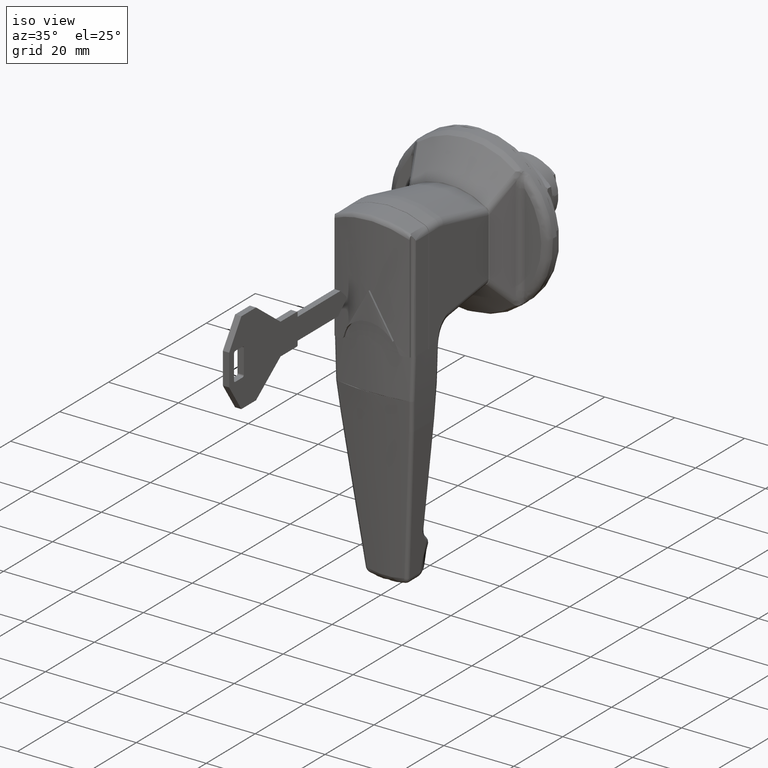
[diagram: clean part render]
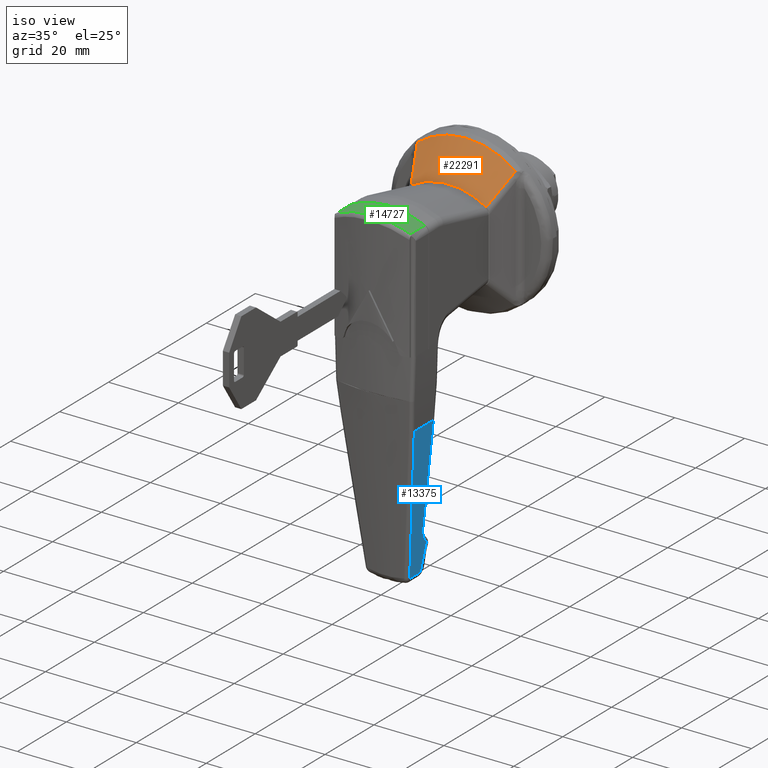
[diagram: same view with three faces highlighted in distinct colors, each labeled with its STEP entity id]
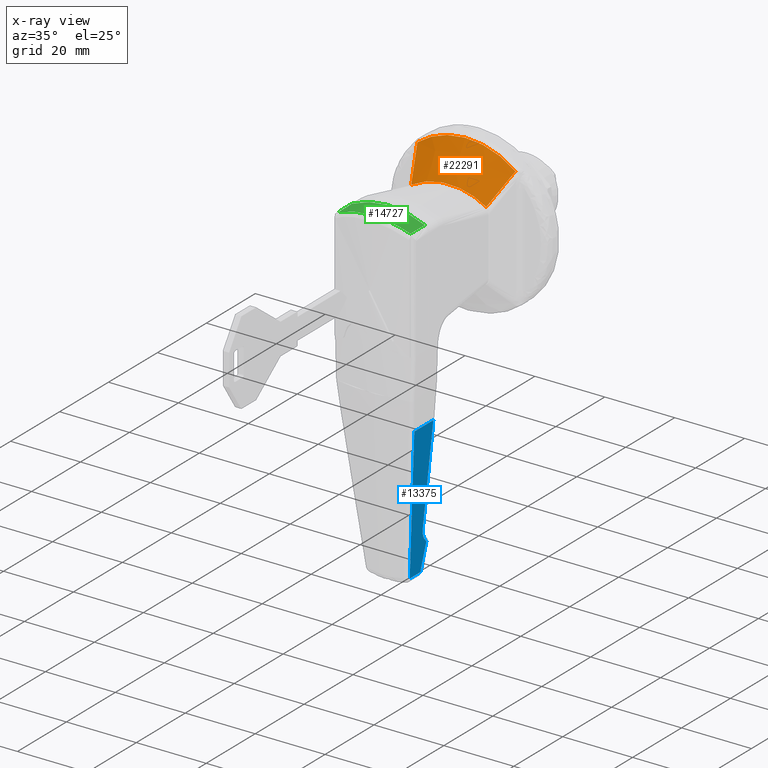
[diagram: x-ray of the same camera — body ghosted, the three highlighted faces saturated]
A machine part, iso view with three faces highlighted in distinct colors.
The next image is the same camera in x-ray (body ghosted, the three faces saturated) — at least one of them is partly hidden behind the body in this view.
Their STEP definitions:

[orange] entity #22291 — the highlighted face is a freeform B-spline surface patch.
#18486=CARTESIAN_POINT('',(-12.321433036247999,10.742000831447980,10.038640938515201));
#18487=VERTEX_POINT('',#18486);
#18748=CARTESIAN_POINT('',(-12.321433036248020,-10.742000831447980,10.038640938515160));
#18749=VERTEX_POINT('',#18748);
#18763=CARTESIAN_POINT('',(-12.321433036247999,10.742000831447999,10.038640938515201));
#18764=CARTESIAN_POINT('',(-12.325116014844641,9.935737711563332,10.544611168174891));
#18765=CARTESIAN_POINT('',(-12.328138148213700,9.103042534133339,10.986867060443890));
#18766=CARTESIAN_POINT('',(-12.333186291889580,7.388131442044818,11.752007768801070));
#18767=CARTESIAN_POINT('',(-12.335207689114609,6.505903244868991,12.074863006352560));
#18768=CARTESIAN_POINT('',(-12.337181424192149,5.371807727873878,12.402957292845640));
#18769=CARTESIAN_POINT('',(-12.337548714730630,5.143413710822889,12.464779750336850));
#18770=CARTESIAN_POINT('',(-12.338231097689251,4.683428351248114,12.580717345870539));
#18771=CARTESIAN_POINT('',(-12.338546632021320,4.451429704269319,12.634910192029890));
#18772=CARTESIAN_POINT('',(-12.339412137278551,3.755455877847617,12.784697056970529));
#18773=CARTESIAN_POINT('',(-12.339883325638439,3.290490825030909,12.867836478127710));
#18774=CARTESIAN_POINT('',(-12.341009530580170,1.892695517705400,13.067904966317080));
#18775=CARTESIAN_POINT('',(-12.341382520495360,0.956982656407495,13.135782738804011));
#18776=CARTESIAN_POINT('',(-12.341389452105140,-0.452496984345249,13.137026997728700));
#18777=CARTESIAN_POINT('',(-12.341298207228110,-0.923313518672048,13.120595811653491));
#18778=CARTESIAN_POINT('',(-12.341020059827899,-1.631029268429679,13.070578587175330));
#18779=CARTESIAN_POINT('',(-12.340903712084121,-1.867183283699320,13.049673109790421));
#18780=CARTESIAN_POINT('',(-12.340692816374739,-2.221790779635927,13.011908714000350));
#18781=CARTESIAN_POINT('',(-12.340616438208270,-2.340048293248194,12.998250611748910));
#18782=CARTESIAN_POINT('',(-12.340452043915390,-2.575746027377839,12.968914207087460));
#18783=CARTESIAN_POINT('',(-12.340363961057900,-2.693304797770000,12.953223943369791));
#18784=CARTESIAN_POINT('',(-12.339517986569410,-3.748750219985067,12.802909412063780));
#18785=CARTESIAN_POINT('',(-12.338395261438340,-4.668669774468554,12.604983915555270));
#18786=CARTESIAN_POINT('',(-12.335273754785410,-6.473446323160069,12.085602395992771));
#18787=CARTESIAN_POINT('',(-12.333264567743960,-7.358304153809424,11.764149384066410));
#18788=CARTESIAN_POINT('',(-12.330087338123590,-8.441642299604650,11.282238012910099));
#18789=CARTESIAN_POINT('',(-12.329417418218990,-8.657403474254357,11.181706606538199));
#18790=CARTESIAN_POINT('',(-12.328010816086421,-9.085057266007770,10.973173764489070));
#18791=CARTESIAN_POINT('',(-12.327274091843030,-9.296999302346393,10.865162632863390));
#18792=CARTESIAN_POINT('',(-12.324957489378249,-9.927135884050864,10.529825710193760));
#18793=CARTESIAN_POINT('',(-12.323274405706840,-10.338895506288710,10.291609589713090));
#18794=CARTESIAN_POINT('',(-12.321433036248020,-10.742000831447980,10.038640938515160));
#18795=B_SPLINE_CURVE_WITH_KNOTS('',3,(#18763,#18764,#18765,#18766,#18767,#18768,#18769,#18770,#18771,#18772,#18773,#18774,#18775,#18776,#18777,#18778,#18779,#18780,#18781,#18782,#18783,#18784,#18785,#18786,#18787,#18788,#18789,#18790,#18791,#18792,#18793,#18794),.UNSPECIFIED.,.F.,.U.,(4,2,2,2,2,2,2,2,2,2,2,2,2,2,2,4),(0.0,0.125000000000000,0.250000000000001,0.281250000000001,0.312500000000001,0.375000000000001,0.500000000000001,0.562500000000001,0.593750000000001,0.609375000000001,0.625000000000001,0.750000000000001,0.875000000000000,0.906250000000000,0.937500000000000,1.0),.UNSPECIFIED.);
#18796=EDGE_CURVE('',#18487,#18749,#18795,.T.);
#19611=CARTESIAN_POINT('',(-5.095358656782400,14.036954959390640,17.403444857041901));
#19612=VERTEX_POINT('',#19611);
#21109=CARTESIAN_POINT('',(-6.079752064712659,-13.591354350000140,16.401682242647951));
#21110=VERTEX_POINT('',#21109);
#21111=CARTESIAN_POINT('',(-12.321433036248010,-10.742000831447969,10.038640938515160));
#21112=CARTESIAN_POINT('',(-10.244822988812780,-11.698844069176809,12.160359127217600));
#21113=CARTESIAN_POINT('',(-8.163295736603228,-12.647335930073950,14.281018012927531));
#21114=CARTESIAN_POINT('',(-6.079752064712669,-13.591354350000140,16.401682242647951));
#21115=QUASI_UNIFORM_CURVE('',3,(#21111,#21112,#21113,#21114),.UNSPECIFIED.,.F.,.U.);
#21116=EDGE_CURVE('',#18749,#21110,#21115,.T.);
#21206=CARTESIAN_POINT('',(-5.095301589092170,-14.070662366495499,17.377053767359001));
#21207=VERTEX_POINT('',#21206);
#21221=CARTESIAN_POINT('',(-6.079752064712659,-13.591354350000140,16.401682242647951));
#21222=CARTESIAN_POINT('',(-5.916437704936828,-13.665349325937910,16.567906222326791));
#21223=CARTESIAN_POINT('',(-5.752362846337359,-13.745715658241441,16.730231671533542));
#21224=CARTESIAN_POINT('',(-5.423726493405588,-13.909612060455119,17.052836709959301));
#21225=CARTESIAN_POINT('',(-5.259188811207092,-13.992913932852320,17.213252471662720));
#21226=CARTESIAN_POINT('',(-5.095301589092170,-14.070662366495499,17.377053767359001));
#21227=B_SPLINE_CURVE_WITH_KNOTS('',3,(#21221,#21222,#21223,#21224,#21225,#21226),.UNSPECIFIED.,.F.,.U.,(4,2,4),(0.0,0.500000000000000,1.0),.UNSPECIFIED.);
#21228=EDGE_CURVE('',#21110,#21207,#21227,.T.);
#21270=CARTESIAN_POINT('',(-5.095358656782400,14.036954959390640,17.403444857041901));
#21271=CARTESIAN_POINT('',(-6.301553571273096,13.491440960670790,16.176164072826900));
#21272=CARTESIAN_POINT('',(-7.507100569459020,12.944506718746039,14.948878084328751));
#21273=CARTESIAN_POINT('',(-9.916135587747155,11.846658723105749,12.494062737386900));
#21274=CARTESIAN_POINT('',(-11.119634789261740,11.295755508289430,11.266544657333620));
#21275=CARTESIAN_POINT('',(-12.321433036247990,10.742000831447990,10.038640938515179));
#21276=B_SPLINE_CURVE_WITH_KNOTS('',3,(#21270,#21271,#21272,#21273,#21274,#21275),.UNSPECIFIED.,.F.,.U.,(4,2,4),(0.0,0.500000000000000,1.0),.UNSPECIFIED.);
#21277=EDGE_CURVE('',#19612,#18487,#21276,.T.);
#22096=CARTESIAN_POINT('',(-5.095301589092178,-14.070662366495490,17.377053767359001));
#22097=CARTESIAN_POINT('',(-5.095515568449123,-13.945530649309440,17.475213801446561));
#22098=CARTESIAN_POINT('',(-5.095707532514079,-13.819312288860329,17.572118738290609));
#22099=CARTESIAN_POINT('',(-5.096058148112445,-13.565444764683409,17.762866637464072));
#22100=CARTESIAN_POINT('',(-5.096534080586068,-13.182278115644690,18.044570964644290));
#22101=CARTESIAN_POINT('',(-5.096908032889113,-12.792077674621931,18.313139006913978));
#22102=CARTESIAN_POINT('',(-5.097606535039664,-12.002418041209710,18.832983363947399));
#22103=CARTESIAN_POINT('',(-5.098017538741005,-11.463648290547219,19.156518643478101));
#22104=CARTESIAN_POINT('',(-5.098885899717735,-10.361710414943641,19.758022336688811));
#22105=CARTESIAN_POINT('',(-5.099341461181886,-9.798542244628546,20.035990668090669));
#22106=CARTESIAN_POINT('',(-5.100110596236076,-8.647587103989594,20.545949052675532));
#22107=CARTESIAN_POINT('',(-5.100411590408659,-8.059796934579811,20.777933148446600));
#22108=CARTESIAN_POINT('',(-5.100421260826939,-7.309236163519828,21.038362366977641));
#22109=CARTESIAN_POINT('',(-5.100408898920842,-7.158329171680895,21.088963705587830));
#22110=CARTESIAN_POINT('',(-5.100366125125066,-6.856315344009243,21.186739788496929));
#22111=CARTESIAN_POINT('',(-5.100274549465916,-6.402476215256112,21.328446918923110));
#22112=CARTESIAN_POINT('',(-5.100143509436993,-5.946202820196547,21.455409627637920));
#22113=CARTESIAN_POINT('',(-5.099908242405691,-5.030450112042230,21.689916698760040));
#22114=CARTESIAN_POINT('',(-5.099687193830082,-3.800907742325839,21.950873260817840));
#22115=CARTESIAN_POINT('',(-5.099959836505550,-2.554452836300698,22.109390024592731));
#22116=CARTESIAN_POINT('',(-5.100310848251478,-1.299457326211547,22.216176080430301));
#22117=CARTESIAN_POINT('',(-5.100526425508275,-0.667689854221087,22.243707298178592));
#22118=CARTESIAN_POINT('',(-5.100537598811961,0.286560910469562,22.245030438143910));
#22119=CARTESIAN_POINT('',(-5.100483964824134,0.603788580125914,22.238791846162879));
#22120=CARTESIAN_POINT('',(-5.100335860699150,1.235712959079505,22.213201150732260));
#22121=CARTESIAN_POINT('',(-5.100241425105533,1.550550779737569,22.193849154276631));
#22122=CARTESIAN_POINT('',(-5.099975994475185,2.491736510859268,22.116387814986169));
#22123=CARTESIAN_POINT('',(-5.099689400959529,3.737787655331285,21.961421320831139));
#22124=CARTESIAN_POINT('',(-5.099894424604695,4.966326095427875,21.704331099431379));
#22125=CARTESIAN_POINT('',(-5.100202731698626,6.186042388508917,21.395795351161649));
#22126=CARTESIAN_POINT('',(-5.100410456967088,6.791490005624771,21.215807886183761));
#22127=CARTESIAN_POINT('',(-5.100421458553435,7.542633622596903,20.957783391078522));
#22128=CARTESIAN_POINT('',(-5.100410181481427,7.692641242216374,20.904496781643800));
#22129=CARTESIAN_POINT('',(-5.100349148883845,7.990817352606002,20.795061399434449));
#22130=CARTESIAN_POINT('',(-5.100207557371832,8.435781399365764,20.626452465589299));
#22131=CARTESIAN_POINT('',(-5.099955692049079,8.873898102961570,20.444578597191061));
#22132=CARTESIAN_POINT('',(-5.099386161963365,9.741096961720837,20.063328681289889));
#22133=CARTESIAN_POINT('',(-5.098928739013429,10.307198209518630,19.785854373414171));
#22134=CARTESIAN_POINT('',(-5.098055604711629,11.415480086690200,19.184565249274641));
#22135=CARTESIAN_POINT('',(-5.097641816993209,11.957661010650700,18.860751001118871));
#22136=CARTESIAN_POINT('',(-5.097060918708800,12.620227597479531,18.426615254554790));
#22137=CARTESIAN_POINT('',(-5.096940619887650,12.751981746309649,18.338317404090130));
#22138=CARTESIAN_POINT('',(-5.096685522857953,13.013961613089441,18.158760754933660));
#22139=CARTESIAN_POINT('',(-5.096550633052079,13.144266387157220,18.067444127451211));
#22140=CARTESIAN_POINT('',(-5.096113086660544,13.532054976929460,17.789608562473578));
#22141=CARTESIAN_POINT('',(-5.095778423109118,13.786525869584320,17.599140442421710));
#22142=CARTESIAN_POINT('',(-5.095358656782399,14.036954959390650,17.403444857041901));
#22143=B_SPLINE_CURVE_WITH_KNOTS('',3,(#22096,#22097,#22098,#22099,#22100,#22101,#22102,#22103,#22104,#22105,#22106,#22107,#22108,#22109,#22110,#22111,#22112,#22113,#22114,#22115,#22116,#22117,#22118,#22119,#22120,#22121,#22122,#22123,#22124,#22125,#22126,#22127,#22128,#22129,#22130,#22131,#22132,#22133,#22134,#22135,#22136,#22137,#22138,#22139,#22140,#22141,#22142),.UNSPECIFIED.,.F.,.U.,(4,2,1,2,2,2,2,2,1,2,1,2,2,2,2,1,2,2,2,1,2,2,2,2,2,4),(0.0,0.015625000000000,0.031250000000000,0.062499999999999,0.124999999999999,0.187499999999999,0.249999999999998,0.265624999999999,0.281249999999999,0.312499999999999,0.374999999999999,0.437499999999999,0.499999999999999,0.531249999999999,0.562499999999999,0.625000000000000,0.687500000000000,0.750000000000000,0.765625000000000,0.781250000000000,0.812500000000000,0.875000000000000,0.937500000000000,0.953125000000000,0.968750000000000,1.0),.UNSPECIFIED.);
#22144=EDGE_CURVE('',#21207,#19612,#22143,.T.);
#22243=CARTESIAN_POINT('',(-12.385579689408599,11.070429869243901,9.741399855580164));
#22244=CARTESIAN_POINT('',(-12.385579689408599,9.516666098191264,10.771135426139830));
#22245=CARTESIAN_POINT('',(-12.385579689408599,7.818413124722134,11.577760614343131));
#22246=CARTESIAN_POINT('',(-12.385579689408599,4.091855862913440,12.758141969573391));
#22247=CARTESIAN_POINT('',(-12.385579689408599,2.047535113427871,13.081031837223520));
#22248=CARTESIAN_POINT('',(-12.385579689408599,-2.047535113427876,13.081031837223520));
#22249=CARTESIAN_POINT('',(-12.385579689408599,-4.091855862913438,12.758141969573391));
#22250=CARTESIAN_POINT('',(-12.385579689408599,-7.828838692956331,11.574458331432480));
#22251=CARTESIAN_POINT('',(-12.385579689408599,-9.536610182243219,10.761652826825211));
#22252=CARTESIAN_POINT('',(-12.385579689408599,-11.097789379967949,9.723234719092019));
#22253=CARTESIAN_POINT('',(-9.940993394670286,12.113000832774910,12.272875078849690));
#22254=CARTESIAN_POINT('',(-9.940993394670286,10.442742554464029,13.465279623486939));
#22255=CARTESIAN_POINT('',(-9.940993394670283,8.594668846407473,14.406445187430490));
#22256=CARTESIAN_POINT('',(-9.940993394670285,4.511667090370532,15.781681989187190));
#22257=CARTESIAN_POINT('',(-9.940993394670285,2.257053841689218,16.155983151359340));
#22258=CARTESIAN_POINT('',(-9.940993394670285,-2.257053841689218,16.155983151359340));
#22259=CARTESIAN_POINT('',(-9.940993394670285,-4.511667090370522,15.781681989187190));
#22260=CARTESIAN_POINT('',(-9.940993394670285,-8.606091618262914,14.402597768993710));
#22261=CARTESIAN_POINT('',(-9.940993394670285,-10.464445660808501,13.454215348650960));
#22262=CARTESIAN_POINT('',(-9.940993394670285,-12.142409312672431,12.251841105108459));
#22263=CARTESIAN_POINT('',(-7.496407099931979,13.155571796305921,14.804350302119200));
#22264=CARTESIAN_POINT('',(-7.496407099931979,11.368819010736800,16.159423820834050));
#22265=CARTESIAN_POINT('',(-7.496407099931978,9.370924568092807,17.235129760517850));
#22266=CARTESIAN_POINT('',(-7.496407099931978,4.931478317827620,18.805222008800950));
#22267=CARTESIAN_POINT('',(-7.496407099931978,2.466572569950565,19.230934465495160));
#22268=CARTESIAN_POINT('',(-7.496407099931978,-2.466572569950565,19.230934465495160));
#22269=CARTESIAN_POINT('',(-7.496407099931978,-4.931478317827609,18.805222008800950));
#22270=CARTESIAN_POINT('',(-7.496407099931978,-9.383344543569494,17.230737206554920));
#22271=CARTESIAN_POINT('',(-7.496407099931978,-11.392281139373781,16.146777870476718));
#22272=CARTESIAN_POINT('',(-7.496407099931978,-13.187029245376911,14.780447491124891));
#22273=CARTESIAN_POINT('',(-5.051820805193661,14.198142759836919,17.335825525388731));
#22274=CARTESIAN_POINT('',(-5.051820805193661,12.294895467009569,18.853568018181189));
#22275=CARTESIAN_POINT('',(-5.051820805193661,10.147180289778129,20.063814333605212));
#22276=CARTESIAN_POINT('',(-5.051820805193661,5.351289545284716,21.828762028414719));
#22277=CARTESIAN_POINT('',(-5.051820805193661,2.676091298211912,22.305885779630930));
#22278=CARTESIAN_POINT('',(-5.051820805193661,-2.676091298211912,22.305885779630930));
#22279=CARTESIAN_POINT('',(-5.051820805193661,-5.351289545284696,21.828762028414719));
#22280=CARTESIAN_POINT('',(-5.051820805193661,-10.160597468876080,20.058876644116150));
#22281=CARTESIAN_POINT('',(-5.051820805193661,-12.320116617939069,18.839340392302471));
#22282=CARTESIAN_POINT('',(-5.051820805193661,-14.231649178081410,17.309053877141341));
#22283=B_SPLINE_SURFACE_WITH_KNOTS('',3,3,((#22243,#22253,#22263,#22273),(#22244,#22254,#22264,#22274),(#22245,#22255,#22265,#22275),(#22246,#22256,#22266,#22276),(#22247,#22257,#22267,#22277),(#22248,#22258,#22268,#22278),(#22249,#22259,#22269,#22279),(#22250,#22260,#22270,#22280),(#22251,#22261,#22271,#22281),(#22252,#22262,#22272,#22282)),.UNSPECIFIED.,.F.,.F.,.U.,(4,2,2,2,4),(4,4),(0.0,7.303557860207189,15.331409323718290,23.359260787229388,30.705710422016001),(0.0,11.761391583826850),.UNSPECIFIED.);
#22284=ORIENTED_EDGE('',*,*,#21277,.T.);
#22285=ORIENTED_EDGE('',*,*,#18796,.T.);
#22286=ORIENTED_EDGE('',*,*,#21116,.T.);
#22287=ORIENTED_EDGE('',*,*,#21228,.T.);
#22288=ORIENTED_EDGE('',*,*,#22144,.T.);
#22289=EDGE_LOOP('',(#22284,#22285,#22286,#22287,#22288));
#22290=FACE_OUTER_BOUND('',#22289,.T.);
#22291=ADVANCED_FACE('',(#22290),#22283,.T.);

[blue] entity #13375 — the highlighted face is a freeform B-spline surface patch.
#7407=CARTESIAN_POINT('',(-33.500000000000000,-10.414127563133260,-37.082054803959750));
#7408=VERTEX_POINT('',#7407);
#7470=CARTESIAN_POINT('',(-33.500000000000000,-7.393915931658960,-65.947209665104097));
#7471=VERTEX_POINT('',#7470);
#7495=CARTESIAN_POINT('',(-33.500000000000000,-7.393915931658960,-65.947209665104097));
#7496=CARTESIAN_POINT('',(-33.500000000000000,-10.414127563133260,-37.082054803959750));
#7497=QUASI_UNIFORM_CURVE('',1,(#7495,#7496),.UNSPECIFIED.,.F.,.U.);
#7498=EDGE_CURVE('',#7471,#7408,#7497,.T.);
#7561=CARTESIAN_POINT('',(-32.035533086328087,-7.023986776613890,-69.482744141148686));
#7562=VERTEX_POINT('',#7561);
#7594=CARTESIAN_POINT('',(-32.035533086328300,-7.023986776613891,-69.482744141148686));
#7595=CARTESIAN_POINT('',(-33.500000000000000,-7.177216439755696,-68.018277906459687));
#7596=CARTESIAN_POINT('',(-33.500000000000000,-7.393915931658960,-65.947209665104097));
#7604=(BOUNDED_CURVE()B_SPLINE_CURVE(2,(#7594,#7595,#7596),.UNSPECIFIED.,.F.,.U.)CURVE()GEOMETRIC_REPRESENTATION_ITEM()QUASI_UNIFORM_CURVE()RATIONAL_B_SPLINE_CURVE((1.0,0.923879488154615,1.0))REPRESENTATION_ITEM(''));
#7605=EDGE_CURVE('',#7562,#7471,#7604,.T.);
#7624=CARTESIAN_POINT('',(-31.374125220021600,-6.954782547001350,-70.144151700801302));
#7625=VERTEX_POINT('',#7624);
#7649=CARTESIAN_POINT('',(-31.374125220021600,-6.954782547001350,-70.144151700801302));
#7650=CARTESIAN_POINT('',(-32.035533086328087,-7.023986776613890,-69.482744141148686));
#7651=QUASI_UNIFORM_CURVE('',1,(#7649,#7650),.UNSPECIFIED.,.F.,.U.);
#7652=EDGE_CURVE('',#7625,#7562,#7651,.T.);
#8705=CARTESIAN_POINT('',(-37.016425169612937,-6.150756441349821,-77.828493357584293));
#8706=VERTEX_POINT('',#8705);
#8774=CARTESIAN_POINT('',(-37.050978351486698,-6.169431051286431,-77.650013974823793));
#8775=VERTEX_POINT('',#8774);
#8776=CARTESIAN_POINT('',(-37.050978351486698,-6.169431051286431,-77.650013974823793));
#8777=CARTESIAN_POINT('',(-37.044476270559123,-6.163105682328419,-77.710467604173516));
#8778=CARTESIAN_POINT('',(-37.032994956016530,-6.156880082743878,-77.769967704841562));
#8779=CARTESIAN_POINT('',(-37.016425169612937,-6.150756441349821,-77.828493357584293));
#8780=QUASI_UNIFORM_CURVE('',3,(#8776,#8777,#8778,#8779),.UNSPECIFIED.,.F.,.U.);
#8781=EDGE_CURVE('',#8775,#8706,#8780,.T.);
#8871=CARTESIAN_POINT('',(-33.0,-6.150756441349821,-77.828493357584293));
#8872=VERTEX_POINT('',#8871);
#8886=CARTESIAN_POINT('',(-37.016425169612937,-6.150756441349821,-77.828493357584293));
#8887=CARTESIAN_POINT('',(-33.0,-6.150756441349821,-77.828493357584293));
#8888=QUASI_UNIFORM_CURVE('',1,(#8886,#8887),.UNSPECIFIED.,.F.,.U.);
#8889=EDGE_CURVE('',#8706,#8872,#8888,.T.);
#9062=CARTESIAN_POINT('',(-32.741215036508002,-6.151969493352670,-77.816899821040010));
#9063=VERTEX_POINT('',#9062);
#9077=CARTESIAN_POINT('',(-33.0,-6.150756441349821,-77.828493357584293));
#9078=CARTESIAN_POINT('',(-32.913563320412429,-6.150756441349821,-77.828493357584293));
#9079=CARTESIAN_POINT('',(-32.827301715076999,-6.151160905593397,-77.824627759920631));
#9080=CARTESIAN_POINT('',(-32.741215036508052,-6.151969493352819,-77.816899821040010));
#9081=QUASI_UNIFORM_CURVE('',3,(#9077,#9078,#9079,#9080),.UNSPECIFIED.,.F.,.U.);
#9082=EDGE_CURVE('',#8872,#9063,#9081,.T.);
#9654=CARTESIAN_POINT('',(-41.257534945699298,-10.414127563133260,-37.082054803959750));
#9655=VERTEX_POINT('',#9654);
#9861=CARTESIAN_POINT('',(-41.257534945699298,-10.414127563133260,-37.082054803959750));
#9862=CARTESIAN_POINT('',(-39.242488927242796,-8.301381287148017,-57.274265112364525));
#9863=CARTESIAN_POINT('',(-37.050978351486698,-6.169431051286431,-77.650013974823793));
#9871=(BOUNDED_CURVE()B_SPLINE_CURVE(2,(#9861,#9862,#9863),.UNSPECIFIED.,.F.,.U.)CURVE()GEOMETRIC_REPRESENTATION_ITEM()QUASI_UNIFORM_CURVE()RATIONAL_B_SPLINE_CURVE((1.0,0.999342727148759,1.0))REPRESENTATION_ITEM(''));
#9872=EDGE_CURVE('',#9655,#8775,#9871,.T.);
#10233=CARTESIAN_POINT('',(-32.057670128265087,-6.553376020176939,-73.980525760921324));
#10234=VERTEX_POINT('',#10233);
#10235=CARTESIAN_POINT('',(-32.057670128265087,-6.553376020176938,-73.980525760921324));
#10236=CARTESIAN_POINT('',(-32.038446752176732,-6.564664800967222,-73.872635173947444));
#10237=CARTESIAN_POINT('',(-32.019223376088362,-6.575953581757505,-73.764744586973578));
#10238=CARTESIAN_POINT('',(-32.0,-6.587242362547791,-73.656853999999697));
#10239=CARTESIAN_POINT('',(-31.791375073340639,-6.709755757365598,-72.485953233600682));
#10240=CARTESIAN_POINT('',(-31.582750146681288,-6.832269152183405,-71.315052467201653));
#10241=CARTESIAN_POINT('',(-31.374125220021600,-6.954782547001350,-70.144151700801302));
#10242=B_SPLINE_CURVE_WITH_KNOTS('',3,(#10235,#10236,#10237,#10238,#10239,#10240,#10241),.UNSPECIFIED.,.F.,.U.,(4,3,4),(0.415983222354963,0.421895434297043,0.486058710151420),.UNSPECIFIED.);
#10243=EDGE_CURVE('',#10234,#7625,#10242,.T.);
#10245=CARTESIAN_POINT('',(-32.741215036508109,-6.151969493352665,-77.816899821040010));
#10246=CARTESIAN_POINT('',(-32.513366733760343,-6.285771668960758,-76.538108467667101));
#10247=CARTESIAN_POINT('',(-32.285518431012683,-6.419573844568851,-75.259317114294248));
#10248=CARTESIAN_POINT('',(-32.057670128265087,-6.553376020176938,-73.980525760921324));
#10249=B_SPLINE_CURVE_WITH_KNOTS('',3,(#10245,#10246,#10247,#10248),.UNSPECIFIED.,.F.,.U.,(4,4),(0.345907734558505,0.415983222354963),.UNSPECIFIED.);
#10250=EDGE_CURVE('',#9063,#10234,#10249,.T.);
#13350=CARTESIAN_POINT('',(-33.500000000000000,-10.414127563133260,-37.082054803959750));
#13351=CARTESIAN_POINT('',(-41.257534945699298,-10.414127563133260,-37.082054803959750));
#13352=QUASI_UNIFORM_CURVE('',1,(#13350,#13351),.UNSPECIFIED.,.F.,.U.);
#13353=EDGE_CURVE('',#7408,#9655,#13352,.T.);
#13358=CARTESIAN_POINT('',(-41.751210349867620,-10.627083007214290,-35.046769657758780));
#13359=CARTESIAN_POINT('',(-41.751210349867620,-5.937801264091311,-79.863775953674434));
#13360=CARTESIAN_POINT('',(-30.880447960197330,-10.627083007214290,-35.046769657758780));
#13361=CARTESIAN_POINT('',(-30.880447960197330,-5.937801264091311,-79.863775953674434));
#13362=B_SPLINE_SURFACE_WITH_KNOTS('',1,1,((#13358,#13360),(#13359,#13361)),.UNSPECIFIED.,.F.,.F.,.U.,(2,2),(2,2),(0.0,45.061662381613587),(0.0,10.870762389670290),.UNSPECIFIED.);
#13363=ORIENTED_EDGE('',*,*,#7605,.T.);
#13364=ORIENTED_EDGE('',*,*,#7498,.T.);
#13365=ORIENTED_EDGE('',*,*,#13353,.T.);
#13366=ORIENTED_EDGE('',*,*,#9872,.T.);
#13367=ORIENTED_EDGE('',*,*,#8781,.T.);
#13368=ORIENTED_EDGE('',*,*,#8889,.T.);
#13369=ORIENTED_EDGE('',*,*,#9082,.T.);
#13370=ORIENTED_EDGE('',*,*,#10250,.T.);
#13371=ORIENTED_EDGE('',*,*,#10243,.T.);
#13372=ORIENTED_EDGE('',*,*,#7652,.T.);
#13373=EDGE_LOOP('',(#13363,#13364,#13365,#13366,#13367,#13368,#13369,#13370,#13371,#13372));
#13374=FACE_OUTER_BOUND('',#13373,.T.);
#13375=ADVANCED_FACE('',(#13374),#13362,.T.);

[green] entity #14727 — the highlighted face is a freeform B-spline surface patch.
#13914=CARTESIAN_POINT('',(-42.665228107918949,10.363636292673020,14.647056215411800));
#13915=VERTEX_POINT('',#13914);
#14001=CARTESIAN_POINT('',(-42.665228107688051,-10.363636357722740,14.647056351284499));
#14002=VERTEX_POINT('',#14001);
#14016=CARTESIAN_POINT('',(-42.665228107918949,10.363636292673020,14.647056215411780));
#14017=CARTESIAN_POINT('',(-42.796096962083098,9.557011230146461,15.033231993281669));
#14018=CARTESIAN_POINT('',(-42.913761288571763,8.734930248536616,15.371572125689131));
#14019=CARTESIAN_POINT('',(-43.119575944880047,7.060287476895181,15.955142921909861));
#14020=CARTESIAN_POINT('',(-43.207735024776682,6.207724823062814,16.200367558185469));
#14021=CARTESIAN_POINT('',(-43.315459357698543,4.905525507268409,16.497532744439120));
#14022=CARTESIAN_POINT('',(-43.347280300663130,4.467558159067115,16.584781314712270));
#14023=CARTESIAN_POINT('',(-43.388560136737318,3.804614229315083,16.697577027155361));
#14024=CARTESIAN_POINT('',(-43.401244620117751,3.582633520411606,16.732160837213460));
#14025=CARTESIAN_POINT('',(-43.424406388240470,3.136642360627634,16.795213712981479));
#14026=CARTESIAN_POINT('',(-43.434893245583083,2.912332395886084,16.823708681706311));
#14027=CARTESIAN_POINT('',(-43.481395581174922,1.792754220779051,16.949915191138668));
#14028=CARTESIAN_POINT('',(-43.499900732128282,0.899028342212307,16.999732033031911));
#14029=CARTESIAN_POINT('',(-43.500098471655747,-0.884663947616848,17.000265817636802));
#14030=CARTESIAN_POINT('',(-43.481789877846488,-1.774630083290208,16.950974940475369));
#14031=CARTESIAN_POINT('',(-43.426989658006491,-3.106747978893304,16.802263445491860));
#14032=CARTESIAN_POINT('',(-43.404165121402947,-3.550314419307753,16.740201842186710));
#14033=CARTESIAN_POINT('',(-43.363112662337187,-4.214944255388948,16.628049515774610));
#14034=CARTESIAN_POINT('',(-43.348281407087264,-4.436519988955471,16.587456431212889));
#14035=CARTESIAN_POINT('',(-43.316396976862791,-4.878772631451303,16.499965704599848));
#14036=CARTESIAN_POINT('',(-43.299393981306480,-5.098777501835253,16.453205722575252));
#14037=CARTESIAN_POINT('',(-43.209226271936117,-6.193273262757894,16.204517171257969));
#14038=CARTESIAN_POINT('',(-43.120616144240472,-7.051228946870860,15.958070939316499));
#14039=CARTESIAN_POINT('',(-42.914067115049711,-8.733032769073853,15.372460516674529));
#14040=CARTESIAN_POINT('',(-42.796118356716690,-9.556879362003587,15.033295125878981));
#14041=CARTESIAN_POINT('',(-42.665228107688051,-10.363636357722740,14.647056351284499));
#14042=B_SPLINE_CURVE_WITH_KNOTS('',3,(#14016,#14017,#14018,#14019,#14020,#14021,#14022,#14023,#14024,#14025,#14026,#14027,#14028,#14029,#14030,#14031,#14032,#14033,#14034,#14035,#14036,#14037,#14038,#14039,#14040,#14041),.UNSPECIFIED.,.F.,.U.,(4,2,2,2,2,2,2,2,2,2,2,2,4),(0.0,0.125000000000000,0.250000000000001,0.312500000000001,0.343750000000001,0.375000000000001,0.500000000000000,0.625000000000000,0.687500000000000,0.718750000000000,0.750000000000000,0.875000000000000,1.0),.UNSPECIFIED.);
#14043=EDGE_CURVE('',#13915,#14002,#14042,.T.);
#14612=CARTESIAN_POINT('',(-36.799999999999997,10.363636292673020,14.647056215411800));
#14613=VERTEX_POINT('',#14612);
#14627=CARTESIAN_POINT('',(-36.799999999999997,-10.363636357722740,14.647056351284499));
#14628=VERTEX_POINT('',#14627);
#14629=CARTESIAN_POINT('',(-36.799999999999997,-10.363636357722740,14.647056351284499));
#14630=CARTESIAN_POINT('',(-36.799999999999997,1.214306E-014,19.608698858088633));
#14631=CARTESIAN_POINT('',(-36.799999999999997,10.363636292673011,14.647056215411791));
#14639=(BOUNDED_CURVE()B_SPLINE_CURVE(2,(#14629,#14630,#14631),.UNSPECIFIED.,.F.,.U.)CURVE()GEOMETRIC_REPRESENTATION_ITEM()QUASI_UNIFORM_CURVE()RATIONAL_B_SPLINE_CURVE((1.0,0.901960675642151,1.0))REPRESENTATION_ITEM(''));
#14640=EDGE_CURVE('',#14628,#14613,#14639,.T.);
#14694=CARTESIAN_POINT('',(-42.665228107918949,10.363636292673020,14.647056215411800));
#14695=CARTESIAN_POINT('',(-36.799999999999997,10.363636292673020,14.647056215411800));
#14696=QUASI_UNIFORM_CURVE('',1,(#14694,#14695),.UNSPECIFIED.,.F.,.U.);
#14697=EDGE_CURVE('',#13915,#14613,#14696,.T.);
#14703=CARTESIAN_POINT('',(-43.667500000185370,-11.281369016901149,14.183264930234651));
#14704=CARTESIAN_POINT('',(-36.628312499995360,-11.281369016901149,14.183264930234651));
#14705=CARTESIAN_POINT('',(-43.667500000185385,0.002014317077740,20.192348589859130));
#14706=CARTESIAN_POINT('',(-36.628312499995346,0.002014317077740,20.192348589859130));
#14707=CARTESIAN_POINT('',(-43.667500000185385,11.284507262102766,14.181593326554944));
#14708=CARTESIAN_POINT('',(-36.628312499995360,11.284507262102766,14.181593326554944));
#14716=(BOUNDED_SURFACE()B_SPLINE_SURFACE(1,2,((#14703,#14705,#14707),(#14704,#14706,#14708)),.UNSPECIFIED.,.F.,.F.,.U.)B_SPLINE_SURFACE_WITH_KNOTS((2,2),(3,3),(0.0,7.039187500190022),(0.0,23.973061051881970),.UNSPECIFIED.)GEOMETRIC_REPRESENTATION_ITEM()RATIONAL_B_SPLINE_SURFACE(((0.999800707454704,0.880839293197323,0.996209953866771),(0.999800707454704,0.880839293197323,0.996209953866771)))REPRESENTATION_ITEM('')SURFACE());
#14717=ORIENTED_EDGE('',*,*,#14697,.F.);
#14718=ORIENTED_EDGE('',*,*,#14043,.T.);
#14719=CARTESIAN_POINT('',(-42.665228107688051,-10.363636357722740,14.647056351284499));
#14720=CARTESIAN_POINT('',(-36.799999999999997,-10.363636357722740,14.647056351284499));
#14721=QUASI_UNIFORM_CURVE('',1,(#14719,#14720),.UNSPECIFIED.,.F.,.U.);
#14722=EDGE_CURVE('',#14002,#14628,#14721,.T.);
#14723=ORIENTED_EDGE('',*,*,#14722,.T.);
#14724=ORIENTED_EDGE('',*,*,#14640,.T.);
#14725=EDGE_LOOP('',(#14717,#14718,#14723,#14724));
#14726=FACE_OUTER_BOUND('',#14725,.T.);
#14727=ADVANCED_FACE('',(#14726),#14716,.T.);